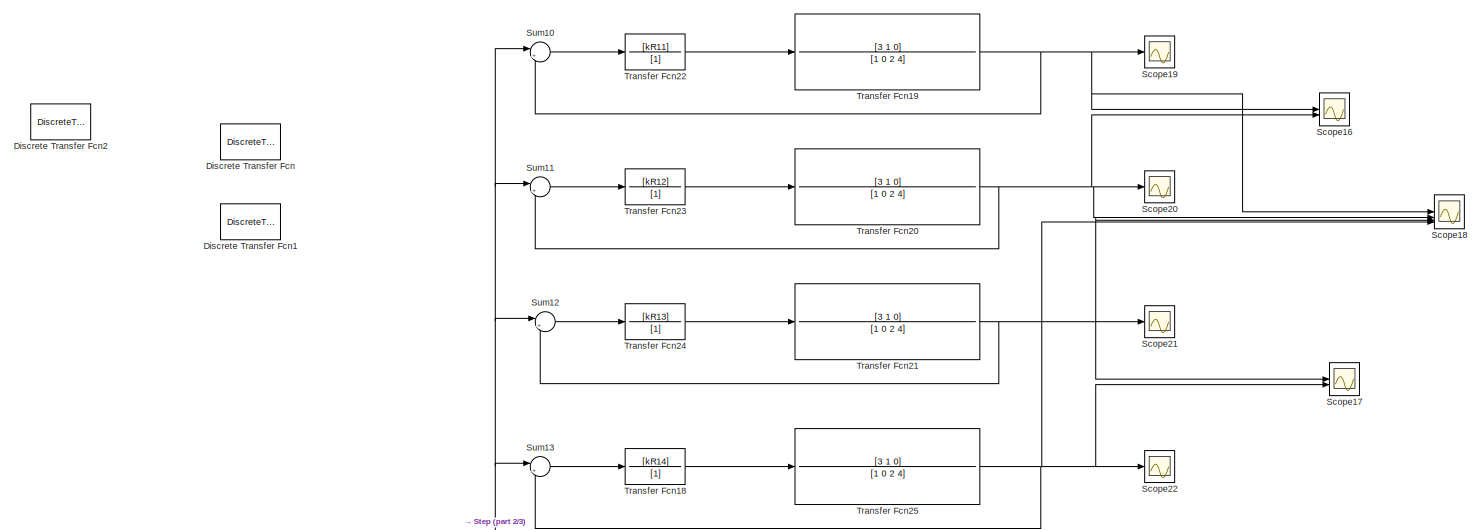
[diagram: root canvas - part 1/3, full width, top band]
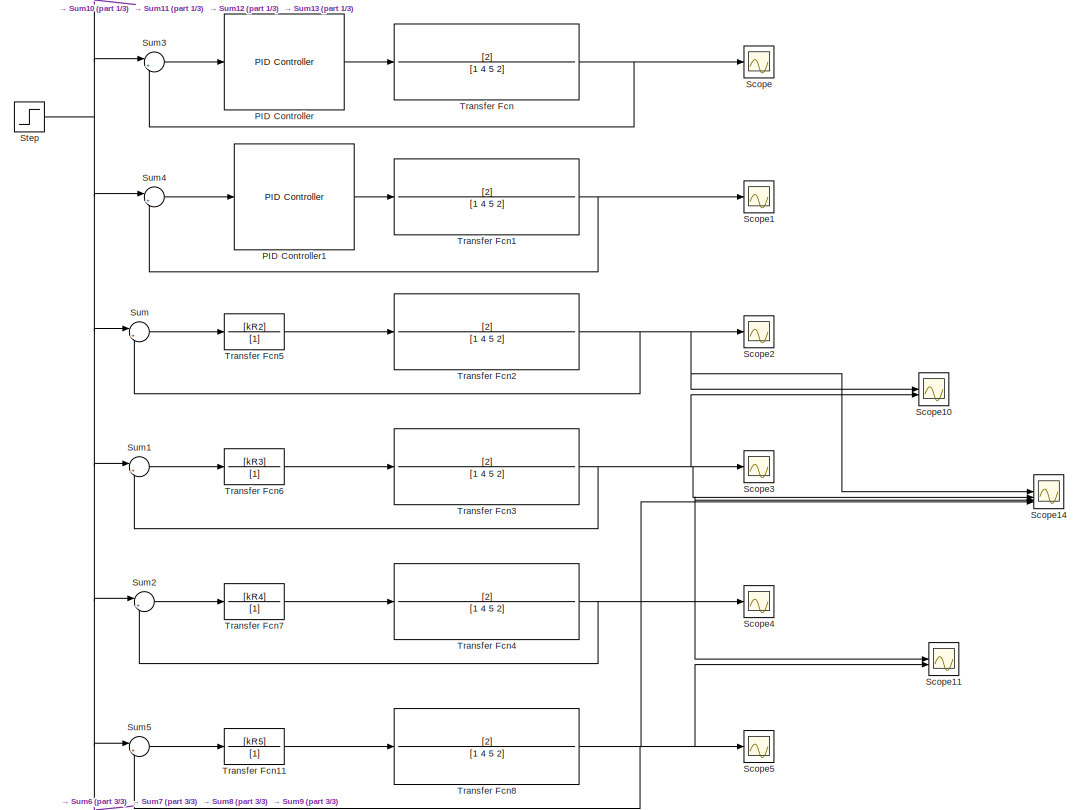
[diagram: root canvas - part 2/3, central region]
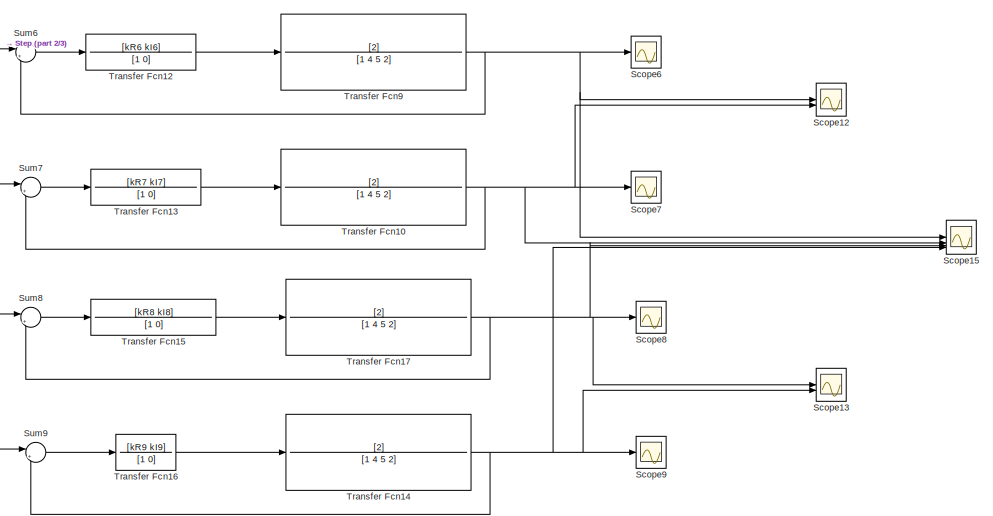
[diagram: root canvas - part 3/3, bottom right region]
MODEL slx_b881090350ce
KIND model
CONFIG AbsTol = auto
CONFIG EnableMultiTasking = off
CONFIG FixedStep = auto
CONFIG MaxStep = auto
CONFIG MinStep = auto
CONFIG RelTol = 1e-3
CONFIG SampleTimeConstraint = Unconstrained
CONFIG SolverName = VariableStepAuto
CONFIG StartTime = 0.0
CONFIG StopTime = 500
BLOCK [DiscreteTransferFcn] Discrete Transfer Fcn
  InputPortMap = u0
  SampleTime = 0.005
BLOCK [DiscreteTransferFcn] Discrete Transfer Fcn1
  InputPortMap = u0
  a0EqualsOne = on
BLOCK [DiscreteTransferFcn] Discrete Transfer Fcn2
  InputPortMap = u0
  SampleTime = 0.005
BLOCK [Reference] PID Controller  REF=slpidlib/PID Controller
  LibrarySourceBlock = simulink/Continuous/PID Controller
  SourceBlock = slpidlib/PID Controller
  SourceType = PID 1dof
BLOCK [Reference] PID Controller1  REF=slpidlib/PID Controller
  LibrarySourceBlock = simulink/Continuous/PID Controller
  SourceBlock = slpidlib/PID Controller
  SourceType = PID 1dof
BLOCK [Scope] Scope
  Floating = off
  NumInputPorts = 1
  ScopeSpecificationString = Simulink.scopes.TimeScopeBlockCfg('CurrentConfiguration', extmgr.ConfigurationSet(extmgr.Configuration('Core','General UI',true),extmgr.Configuration('Core','Source UI',true),extmgr.Configuration('Sources','WiredSimulink',true),extmgr.Configuration('Visuals','Time Domain',true,'SerializedDisplays',{struct('MinYLimReal','-0.06995','MaxYLimReal','0.62958','YLabelReal','','MinYLimMag','0.00000','MaxY...<+1421ch>
BLOCK [Scope] Scope1
  Floating = off
  NumInputPorts = 1
  ScopeSpecificationString = Simulink.scopes.TimeScopeBlockCfg('CurrentConfiguration', extmgr.ConfigurationSet(extmgr.Configuration('Core','General UI',true),extmgr.Configuration('Core','Source UI',true),extmgr.Configuration('Sources','WiredSimulink',true,'DataLoggingVariableName','ScopeData1'),extmgr.Configuration('Visuals','Time Domain',true,'SerializedDisplays',{struct('MinYLimReal','-0.17364','MaxYLimReal','1.56279','YLab...<+1461ch>
BLOCK [Scope] Scope10
  Floating = off
  NumInputPorts = 2
  ScopeSpecificationString = Simulink.scopes.TimeScopeBlockCfg('CurrentConfiguration', extmgr.ConfigurationSet(extmgr.Configuration('Core','General UI',true),extmgr.Configuration('Core','Source UI',true),extmgr.Configuration('Sources','WiredSimulink',true,'DataLoggingVariableName','ScopeData10'),extmgr.Configuration('Visuals','Time Domain',true,'SerializedDisplays',{struct('MinYLimReal','-10.125','MaxYLimReal','1.125','YLabel...<+1470ch>
BLOCK [Scope] Scope11
  Floating = off
  NumInputPorts = 2
  ScopeSpecificationString = Simulink.scopes.TimeScopeBlockCfg('CurrentConfiguration', extmgr.ConfigurationSet(extmgr.Configuration('Core','General UI',true),extmgr.Configuration('Core','Source UI',true),extmgr.Configuration('Sources','WiredSimulink',true,'DataLoggingVariableName','ScopeData11'),extmgr.Configuration('Visuals','Time Domain',true,'SerializedDisplays',{struct('MinYLimReal','-0.17361','MaxYLimReal','1.56249','YLa...<+1449ch>
BLOCK [Scope] Scope12
  Floating = off
  NumInputPorts = 2
  ScopeSpecificationString = Simulink.scopes.TimeScopeBlockCfg('CurrentConfiguration', extmgr.ConfigurationSet(extmgr.Configuration('Core','General UI',true),extmgr.Configuration('Core','Source UI',true),extmgr.Configuration('Sources','WiredSimulink',true,'DataLoggingVariableName','ScopeData12'),extmgr.Configuration('Visuals','Time Domain',true,'SerializedDisplays',{struct('MinYLimReal','-0.17361','MaxYLimReal','1.56249','YLa...<+1449ch>
BLOCK [Scope] Scope13
  Floating = off
  NumInputPorts = 2
  ScopeSpecificationString = Simulink.scopes.TimeScopeBlockCfg('CurrentConfiguration', extmgr.ConfigurationSet(extmgr.Configuration('Core','General UI',true),extmgr.Configuration('Core','Source UI',true),extmgr.Configuration('Sources','WiredSimulink',true,'DataLoggingVariableName','ScopeData13'),extmgr.Configuration('Visuals','Time Domain',true,'SerializedDisplays',{struct('MinYLimReal','-31656569146039108370432.00000','MaxYL...<+1652ch>
BLOCK [Scope] Scope14
  Floating = off
  NumInputPorts = 4
  ScopeSpecificationString = Simulink.scopes.TimeScopeBlockCfg('CurrentConfiguration', extmgr.ConfigurationSet(extmgr.Configuration('Core','General UI',true),extmgr.Configuration('Core','Source UI',true),extmgr.Configuration('Sources','WiredSimulink',true,'DataLoggingVariableName','ScopeData14'),extmgr.Configuration('Visuals','Time Domain',true,'SerializedDisplays',{struct('MinYLimReal','-2011468538549185653603246391220544471...<+1932ch>
BLOCK [Scope] Scope15
  Floating = off
  NumInputPorts = 4
  ScopeSpecificationString = Simulink.scopes.TimeScopeBlockCfg('CurrentConfiguration', extmgr.ConfigurationSet(extmgr.Configuration('Core','General UI',true),extmgr.Configuration('Core','Source UI',true),extmgr.Configuration('Sources','WiredSimulink',true,'DataLoggingVariableName','ScopeData15'),extmgr.Configuration('Visuals','Time Domain',true,'SerializedDisplays',{struct('MinYLimReal','-0.17361','MaxYLimReal','1.56249','YLa...<+1449ch>
BLOCK [Scope] Scope16
  Floating = off
  NumInputPorts = 2
  ScopeSpecificationString = Simulink.scopes.TimeScopeBlockCfg('CurrentConfiguration', extmgr.ConfigurationSet(extmgr.Configuration('Core','General UI',true),extmgr.Configuration('Core','Source UI',true),extmgr.Configuration('Sources','WiredSimulink',true,'DataLoggingVariableName','ScopeData16'),extmgr.Configuration('Visuals','Time Domain',true,'SerializedDisplays',{struct('MinYLimReal','-10.125','MaxYLimReal','1.125','YLabel...<+1470ch>
BLOCK [Scope] Scope17
  Floating = off
  NumInputPorts = 2
  ScopeSpecificationString = Simulink.scopes.TimeScopeBlockCfg('CurrentConfiguration', extmgr.ConfigurationSet(extmgr.Configuration('Core','General UI',true),extmgr.Configuration('Core','Source UI',true),extmgr.Configuration('Sources','WiredSimulink',true,'DataLoggingVariableName','ScopeData17'),extmgr.Configuration('Visuals','Time Domain',true,'SerializedDisplays',{struct('MinYLimReal','-0.17361','MaxYLimReal','1.56249','YLa...<+1449ch>
BLOCK [Scope] Scope18
  Floating = off
  NumInputPorts = 4
  ScopeSpecificationString = Simulink.scopes.TimeScopeBlockCfg('CurrentConfiguration', extmgr.ConfigurationSet(extmgr.Configuration('Core','General UI',true),extmgr.Configuration('Core','Source UI',true),extmgr.Configuration('Sources','WiredSimulink',true,'DataLoggingVariableName','ScopeData18'),extmgr.Configuration('Visuals','Time Domain',true,'SerializedDisplays',{struct('MinYLimReal','-2011459529298691754049484818482661949...<+1929ch>
BLOCK [Scope] Scope19
  Floating = off
  NumInputPorts = 1
  ScopeSpecificationString = Simulink.scopes.TimeScopeBlockCfg('CurrentConfiguration', extmgr.ConfigurationSet(extmgr.Configuration('Core','General UI',true),extmgr.Configuration('Core','Source UI',true),extmgr.Configuration('Sources','WiredSimulink',true,'DataLoggingVariableName','ScopeData19'),extmgr.Configuration('Visuals','Time Domain',true,'SerializedDisplays',{struct('MinYLimReal','-0.03853','MaxYLimReal','0.34679','YLa...<+1491ch>
BLOCK [Scope] Scope2
  Floating = off
  NumInputPorts = 1
  ScopeSpecificationString = Simulink.scopes.TimeScopeBlockCfg('CurrentConfiguration', extmgr.ConfigurationSet(extmgr.Configuration('Core','General UI',true),extmgr.Configuration('Core','Source UI',true),extmgr.Configuration('Sources','WiredSimulink',true,'DataLoggingVariableName','ScopeData2'),extmgr.Configuration('Visuals','Time Domain',true,'SerializedDisplays',{struct('MinYLimReal','-10.125','MaxYLimReal','1.125','YLabelR...<+1453ch>
BLOCK [Scope] Scope20
  Floating = off
  NumInputPorts = 1
  ScopeSpecificationString = Simulink.scopes.TimeScopeBlockCfg('CurrentConfiguration', extmgr.ConfigurationSet(extmgr.Configuration('Core','General UI',true),extmgr.Configuration('Core','Source UI',true),extmgr.Configuration('Sources','WiredSimulink',true,'DataLoggingVariableName','ScopeData20'),extmgr.Configuration('Visuals','Time Domain',true,'SerializedDisplays',{struct('MinYLimReal','-0.02935','MaxYLimReal','0.26417','YLa...<+1492ch>
BLOCK [Scope] Scope21
  Floating = off
  NumInputPorts = 1
  ScopeSpecificationString = Simulink.scopes.TimeScopeBlockCfg('CurrentConfiguration', extmgr.ConfigurationSet(extmgr.Configuration('Core','General UI',true),extmgr.Configuration('Core','Source UI',true),extmgr.Configuration('Sources','WiredSimulink',true,'DataLoggingVariableName','ScopeData21'),extmgr.Configuration('Visuals','Time Domain',true,'SerializedDisplays',{struct('MinYLimReal','-802654957588398225752064.00000','MaxY...<+1673ch>
BLOCK [Scope] Scope22
  Floating = off
  NumInputPorts = 1
  ScopeSpecificationString = Simulink.scopes.TimeScopeBlockCfg('CurrentConfiguration', extmgr.ConfigurationSet(extmgr.Configuration('Core','General UI',true),extmgr.Configuration('Core','Source UI',true),extmgr.Configuration('Sources','WiredSimulink',true,'DataLoggingVariableName','ScopeData22'),extmgr.Configuration('Visuals','Time Domain',true,'SerializedDisplays',{struct('MinYLimReal','-7082620930440622597225778957545076695...<+2420ch>
BLOCK [Scope] Scope3
  Floating = off
  NumInputPorts = 1
  ScopeSpecificationString = Simulink.scopes.TimeScopeBlockCfg('CurrentConfiguration', extmgr.ConfigurationSet(extmgr.Configuration('Core','General UI',true),extmgr.Configuration('Core','Source UI',true),extmgr.Configuration('Sources','WiredSimulink',true,'DataLoggingVariableName','ScopeData3'),extmgr.Configuration('Visuals','Time Domain',true,'SerializedDisplays',{struct('MinYLimReal','-2.625','MaxYLimReal','0.29167','YLabel...<+1453ch>
BLOCK [Scope] Scope4
  Floating = off
  NumInputPorts = 1
  ScopeSpecificationString = Simulink.scopes.TimeScopeBlockCfg('CurrentConfiguration', extmgr.ConfigurationSet(extmgr.Configuration('Core','General UI',true),extmgr.Configuration('Core','Source UI',true),extmgr.Configuration('Sources','WiredSimulink',true,'DataLoggingVariableName','ScopeData4'),extmgr.Configuration('Visuals','Time Domain',true,'SerializedDisplays',{struct('MinYLimReal','-20114595292865669836573873470035931955...<+1761ch>
BLOCK [Scope] Scope5
  Floating = off
  NumInputPorts = 1
  ScopeSpecificationString = Simulink.scopes.TimeScopeBlockCfg('CurrentConfiguration', extmgr.ConfigurationSet(extmgr.Configuration('Core','General UI',true),extmgr.Configuration('Core','Source UI',true),extmgr.Configuration('Sources','WiredSimulink',true,'DataLoggingVariableName','ScopeData5'),extmgr.Configuration('Visuals','Time Domain',true,'SerializedDisplays',{struct('MinYLimReal','-8324884826.28048','MaxYLimReal','82158...<+1531ch>
BLOCK [Scope] Scope6
  Floating = off
  NumInputPorts = 1
  ScopeSpecificationString = Simulink.scopes.TimeScopeBlockCfg('CurrentConfiguration', extmgr.ConfigurationSet(extmgr.Configuration('Core','General UI',true),extmgr.Configuration('Core','Source UI',true),extmgr.Configuration('Sources','WiredSimulink',true,'DataLoggingVariableName','ScopeData6'),extmgr.Configuration('Visuals','Time Domain',true,'SerializedDisplays',{struct('MinYLimReal','-0.23325','MaxYLimReal','2.09929','YLab...<+1461ch>
BLOCK [Scope] Scope7
  Floating = off
  NumInputPorts = 1
  ScopeSpecificationString = Simulink.scopes.TimeScopeBlockCfg('CurrentConfiguration', extmgr.ConfigurationSet(extmgr.Configuration('Core','General UI',true),extmgr.Configuration('Core','Source UI',true),extmgr.Configuration('Sources','WiredSimulink',true,'DataLoggingVariableName','ScopeData7'),extmgr.Configuration('Visuals','Time Domain',true,'SerializedDisplays',{struct('MinYLimReal','-0.17364','MaxYLimReal','1.56279','YLab...<+1462ch>
BLOCK [Scope] Scope8
  Floating = off
  NumInputPorts = 1
  ScopeSpecificationString = Simulink.scopes.TimeScopeBlockCfg('CurrentConfiguration', extmgr.ConfigurationSet(extmgr.Configuration('Core','General UI',true),extmgr.Configuration('Core','Source UI',true),extmgr.Configuration('Sources','WiredSimulink',true,'DataLoggingVariableName','ScopeData8'),extmgr.Configuration('Visuals','Time Domain',true,'SerializedDisplays',{struct('MinYLimReal','-31656569146037078327296.00000','MaxYLi...<+1634ch>
BLOCK [Scope] Scope9
  Floating = off
  NumInputPorts = 1
  ScopeSpecificationString = Simulink.scopes.TimeScopeBlockCfg('CurrentConfiguration', extmgr.ConfigurationSet(extmgr.Configuration('Core','General UI',true),extmgr.Configuration('Core','Source UI',true),extmgr.Configuration('Sources','WiredSimulink',true,'DataLoggingVariableName','ScopeData9'),extmgr.Configuration('Visuals','Time Domain',true,'SerializedDisplays',{struct('MinYLimReal','-21500622476.7541','MaxYLimReal','20427...<+1534ch>
BLOCK [Step] Step
  SampleTime = 0
BLOCK [Sum] Sum
  Inputs = |+-
BLOCK [Sum] Sum1
  Inputs = |+-
BLOCK [Sum] Sum10
  Inputs = |+-
BLOCK [Sum] Sum11
  Inputs = |+-
BLOCK [Sum] Sum12
  Inputs = |+-
BLOCK [Sum] Sum13
  Inputs = |+-
BLOCK [Sum] Sum2
  Inputs = |+-
BLOCK [Sum] Sum3
  Inputs = |+-
BLOCK [Sum] Sum4
  Inputs = |+-
BLOCK [Sum] Sum5
  Inputs = |+-
BLOCK [Sum] Sum6
  Inputs = |+-
BLOCK [Sum] Sum7
  Inputs = |+-
BLOCK [Sum] Sum8
  Inputs = |+-
BLOCK [Sum] Sum9
  Inputs = |+-
BLOCK [TransferFcn] Transfer Fcn
  Denominator = [1 4 5 2]
  Numerator = [2]
BLOCK [TransferFcn] Transfer Fcn1
  Denominator = [1 4 5 2]
  Numerator = [2]
BLOCK [TransferFcn] Transfer Fcn10
  Denominator = [1 4 5 2]
  Numerator = [2]
BLOCK [TransferFcn] Transfer Fcn11
  Denominator = [1]
  Numerator = [kR5]
BLOCK [TransferFcn] Transfer Fcn12
  Denominator = [1 0]
  Numerator = [kR6 kI6]
BLOCK [TransferFcn] Transfer Fcn13
  Denominator = [1 0]
  Numerator = [kR7 kI7]
BLOCK [TransferFcn] Transfer Fcn14
  Denominator = [1 4 5 2]
  Numerator = [2]
BLOCK [TransferFcn] Transfer Fcn15
  Denominator = [1 0]
  Numerator = [kR8 kI8]
BLOCK [TransferFcn] Transfer Fcn16
  Denominator = [1 0]
  Numerator = [kR9 kI9]
BLOCK [TransferFcn] Transfer Fcn17
  Denominator = [1 4 5 2]
  Numerator = [2]
BLOCK [TransferFcn] Transfer Fcn18
  Denominator = [1]
  Numerator = [kR14]
BLOCK [TransferFcn] Transfer Fcn19
  Denominator = [1 0 2 4]
  Numerator = [3 1 0]
BLOCK [TransferFcn] Transfer Fcn2
  Denominator = [1 4 5 2]
  Numerator = [2]
BLOCK [TransferFcn] Transfer Fcn20
  Denominator = [1 0 2 4]
  Numerator = [3 1 0]
BLOCK [TransferFcn] Transfer Fcn21
  Denominator = [1 0 2 4]
  Numerator = [3 1 0]
BLOCK [TransferFcn] Transfer Fcn22
  Denominator = [1]
  Numerator = [kR11]
BLOCK [TransferFcn] Transfer Fcn23
  Denominator = [1]
  Numerator = [kR12]
BLOCK [TransferFcn] Transfer Fcn24
  Denominator = [1]
  Numerator = [kR13]
BLOCK [TransferFcn] Transfer Fcn25
  Denominator = [1 0 2 4]
  Numerator = [3 1 0]
BLOCK [TransferFcn] Transfer Fcn3
  Denominator = [1 4 5 2]
  Numerator = [2]
BLOCK [TransferFcn] Transfer Fcn4
  Denominator = [1 4 5 2]
  Numerator = [2]
BLOCK [TransferFcn] Transfer Fcn5
  Denominator = [1]
  Numerator = [kR2]
BLOCK [TransferFcn] Transfer Fcn6
  Denominator = [1]
  Numerator = [kR3]
BLOCK [TransferFcn] Transfer Fcn7
  Denominator = [1]
  Numerator = [kR4]
BLOCK [TransferFcn] Transfer Fcn8
  Denominator = [1 4 5 2]
  Numerator = [2]
BLOCK [TransferFcn] Transfer Fcn9
  Denominator = [1 4 5 2]
  Numerator = [2]
LINE PID Controller1:1 -> Transfer Fcn1:1
LINE PID Controller:1 -> Transfer Fcn:1
NET Step:1 -> Sum10:1, Sum11:1, Sum12:1, Sum13:1, Sum1:1, Sum2:1, Sum3:1, Sum4:1, Sum5:1, Sum6:1, Sum7:1, Sum8:1, Sum9:1, Sum:1
LINE Sum10:1 -> Transfer Fcn22:1
LINE Sum11:1 -> Transfer Fcn23:1
LINE Sum12:1 -> Transfer Fcn24:1
LINE Sum13:1 -> Transfer Fcn18:1
LINE Sum1:1 -> Transfer Fcn6:1
LINE Sum2:1 -> Transfer Fcn7:1
LINE Sum3:1 -> PID Controller:1
LINE Sum4:1 -> PID Controller1:1
LINE Sum5:1 -> Transfer Fcn11:1
LINE Sum6:1 -> Transfer Fcn12:1
LINE Sum7:1 -> Transfer Fcn13:1
LINE Sum8:1 -> Transfer Fcn15:1
LINE Sum9:1 -> Transfer Fcn16:1
LINE Sum:1 -> Transfer Fcn5:1
NET Transfer Fcn10:1 -> Scope12:2, Scope15:2, Scope7:1, Sum7:2
LINE Transfer Fcn11:1 -> Transfer Fcn8:1
LINE Transfer Fcn12:1 -> Transfer Fcn9:1
LINE Transfer Fcn13:1 -> Transfer Fcn10:1
NET Transfer Fcn14:1 -> Scope13:2, Scope15:4, Scope9:1, Sum9:2
LINE Transfer Fcn15:1 -> Transfer Fcn17:1
LINE Transfer Fcn16:1 -> Transfer Fcn14:1
NET Transfer Fcn17:1 -> Scope13:1, Scope15:3, Scope8:1, Sum8:2
LINE Transfer Fcn18:1 -> Transfer Fcn25:1
NET Transfer Fcn19:1 -> Scope16:1, Scope18:1, Scope19:1, Sum10:2
NET Transfer Fcn1:1 -> Scope1:1, Sum4:2
NET Transfer Fcn20:1 -> Scope16:2, Scope18:2, Scope20:1, Sum11:2
NET Transfer Fcn21:1 -> Scope17:1, Scope18:3, Scope21:1, Sum12:2
LINE Transfer Fcn22:1 -> Transfer Fcn19:1
LINE Transfer Fcn23:1 -> Transfer Fcn20:1
LINE Transfer Fcn24:1 -> Transfer Fcn21:1
NET Transfer Fcn25:1 -> Scope17:2, Scope18:4, Scope22:1, Sum13:2
NET Transfer Fcn2:1 -> Scope10:1, Scope14:1, Scope2:1, Sum:2
NET Transfer Fcn3:1 -> Scope10:2, Scope14:2, Scope3:1, Sum1:2
NET Transfer Fcn4:1 -> Scope11:1, Scope14:3, Scope4:1, Sum2:2
LINE Transfer Fcn5:1 -> Transfer Fcn2:1
LINE Transfer Fcn6:1 -> Transfer Fcn3:1
LINE Transfer Fcn7:1 -> Transfer Fcn4:1
NET Transfer Fcn8:1 -> Scope11:2, Scope14:4, Scope5:1, Sum5:2
NET Transfer Fcn9:1 -> Scope12:1, Scope15:1, Scope6:1, Sum6:2
NET Transfer Fcn:1 -> Scope:1, Sum3:2
note: NET lines group one-source signal fan-out (src -> all destinations, sorted); 1:1 wires keep LINE
